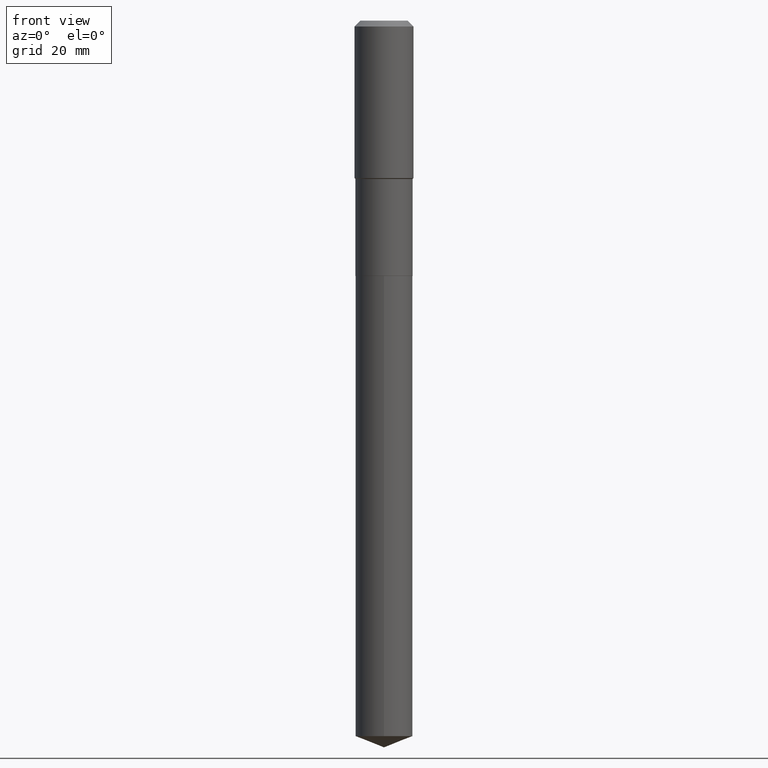
[diagram: clean part render]
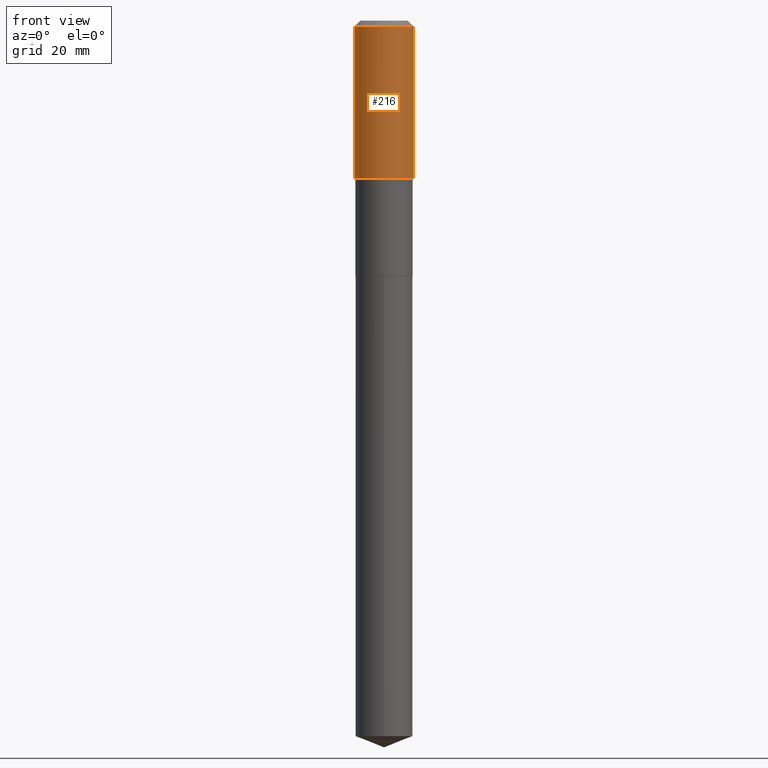
[diagram: same view with one face highlighted and labeled with its STEP entity id]
A machine part, front view. The second image highlights one B-rep face of the part: STEP entity #216.
In plain terms, the highlighted cylindrical surface (edge-blend (fillet) strip) has radius 9.0005 mm, axis along (-0, 0, 1).
Its self-contained STEP definition (entity closure, byte-faithful):
#8 = AXIS2_PLACEMENT_3D ( 'NONE', #113, #464, #125 ) ;
#12 = DIRECTION ( 'NONE',  ( -2.445468806185136597E-29, 3.491481338843145583E-15, 1.000000000000000000 ) ) ;
#32 = CIRCLE ( 'NONE', #8, 0.3543500000000002204 ) ;
#40 = FACE_OUTER_BOUND ( 'NONE', #279, .T. ) ;
#41 = CYLINDRICAL_SURFACE ( 'NONE', #215, 0.3543500000000001648 ) ;
#47 = CARTESIAN_POINT ( 'NONE',  ( -0.3543499999999999983, -9.125198590273920027E-16, -0.07087000000000041877 ) ) ;
#59 = ORIENTED_EDGE ( 'NONE', *, *, #453, .T. ) ;
#60 = ORIENTED_EDGE ( 'NONE', *, *, #462, .T. ) ;
#72 = CARTESIAN_POINT ( 'NONE',  ( 0.3543500000000002204, -9.087627628740930810E-15, -1.894099999999999673 ) ) ;
#102 = VERTEX_POINT ( 'NONE', #72 ) ;
#110 = CARTESIAN_POINT ( 'NONE',  ( 1.733103742943416361E-30, -2.474412824838151867E-16, -0.07087000000000041877 ) ) ;
#113 = CARTESIAN_POINT ( 'NONE',  ( 4.631962465795266270E-29, -6.613214803902800932E-15, -1.894099999999999673 ) ) ;
#121 = VECTOR ( 'NONE', #232, 39.37007874015748143 ) ;
#125 = DIRECTION ( 'NONE',  ( 1.000000000000000000, -6.982962677686266711E-15, 0.000000000000000000 ) ) ;
#155 = CARTESIAN_POINT ( 'NONE',  ( -0.3543500000000002204, -4.095406619736884752E-15, -1.894099999999999673 ) ) ;
#171 = CIRCLE ( 'NONE', #458, 0.3543499999999999983 ) ;
#215 = AXIS2_PLACEMENT_3D ( 'NONE', #351, #12, #423 ) ;
#216 = ADVANCED_FACE ( 'NONE', ( #40 ), #41, .T. ) ;
#220 = DIRECTION ( 'NONE',  ( -2.445468806185136597E-29, 3.491481338843145583E-15, 1.000000000000000000 ) ) ;
#222 = LINE ( 'NONE', #377, #452 ) ;
#227 = CARTESIAN_POINT ( 'NONE',  ( 0.3543499999999999983, -2.721854107321943733E-15, -0.07087000000000041877 ) ) ;
#232 = DIRECTION ( 'NONE',  ( -2.445468806185136877E-29, 3.491481338843145188E-15, 1.000000000000000000 ) ) ;
#237 = VERTEX_POINT ( 'NONE', #227 ) ;
#239 = VERTEX_POINT ( 'NONE', #155 ) ;
#258 = LINE ( 'NONE', #375, #121 ) ;
#279 = EDGE_LOOP ( 'NONE', ( #282, #59, #60, #474 ) ) ;
#282 = ORIENTED_EDGE ( 'NONE', *, *, #476, .F. ) ;
#322 = VERTEX_POINT ( 'NONE', #47 ) ;
#351 = CARTESIAN_POINT ( 'NONE',  ( 0.000000000000000000, 0.000000000000000000, 0.000000000000000000 ) ) ;
#372 = DIRECTION ( 'NONE',  ( 1.000000000000000000, -6.982962677686266711E-15, 0.000000000000000000 ) ) ;
#375 = CARTESIAN_POINT ( 'NONE',  ( -0.3543500000000001648, 2.517808184165916180E-15, -1.743024649231826627E-29 ) ) ;
#377 = CARTESIAN_POINT ( 'NONE',  ( 0.3543500000000001648, -2.474412824838129483E-15, 1.727873240503290590E-29 ) ) ;
#408 = DIRECTION ( 'NONE',  ( -2.445468806185136877E-29, 3.491481338843145188E-15, 1.000000000000000000 ) ) ;
#423 = DIRECTION ( 'NONE',  ( 1.000000000000000000, -6.982962677686265922E-15, 4.876176775795935793E-29 ) ) ;
#449 = EDGE_CURVE ( 'NONE', #322, #237, #171, .T. ) ;
#452 = VECTOR ( 'NONE', #408, 39.37007874015748143 ) ;
#453 = EDGE_CURVE ( 'NONE', #239, #102, #32, .T. ) ;
#458 = AXIS2_PLACEMENT_3D ( 'NONE', #110, #220, #372 ) ;
#462 = EDGE_CURVE ( 'NONE', #102, #237, #222, .T. ) ;
#464 = DIRECTION ( 'NONE',  ( -2.445468806185136597E-29, 3.491481338843145583E-15, 1.000000000000000000 ) ) ;
#474 = ORIENTED_EDGE ( 'NONE', *, *, #449, .F. ) ;
#476 = EDGE_CURVE ( 'NONE', #239, #322, #258, .T. ) ;